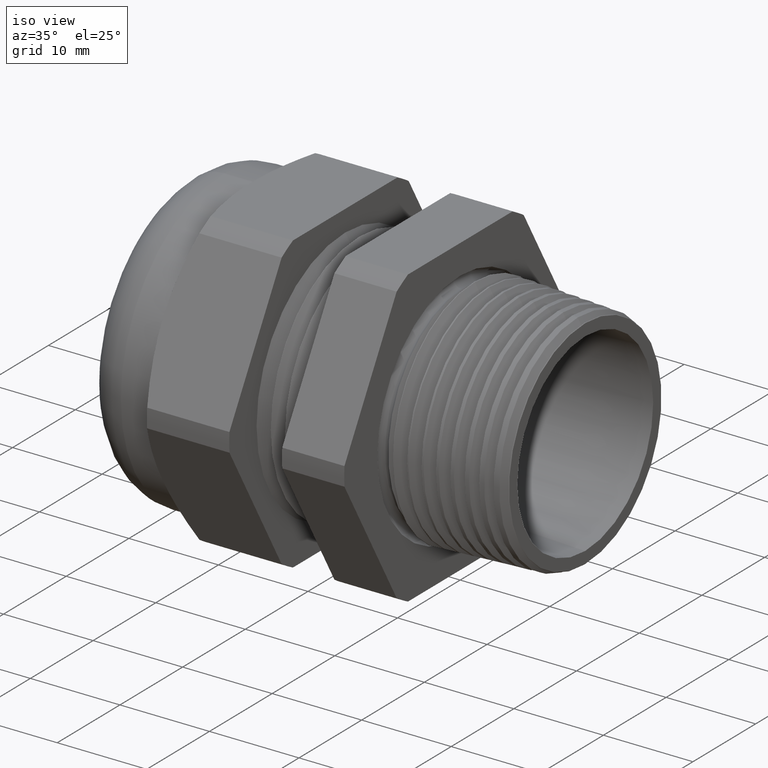
[diagram: clean part render]
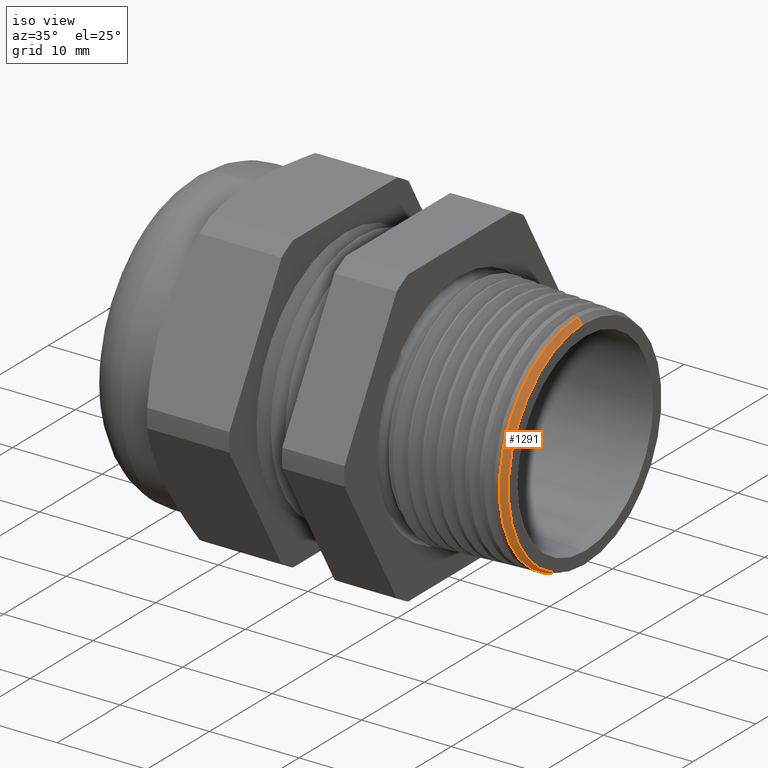
[diagram: same view with one face highlighted and labeled with its STEP entity id]
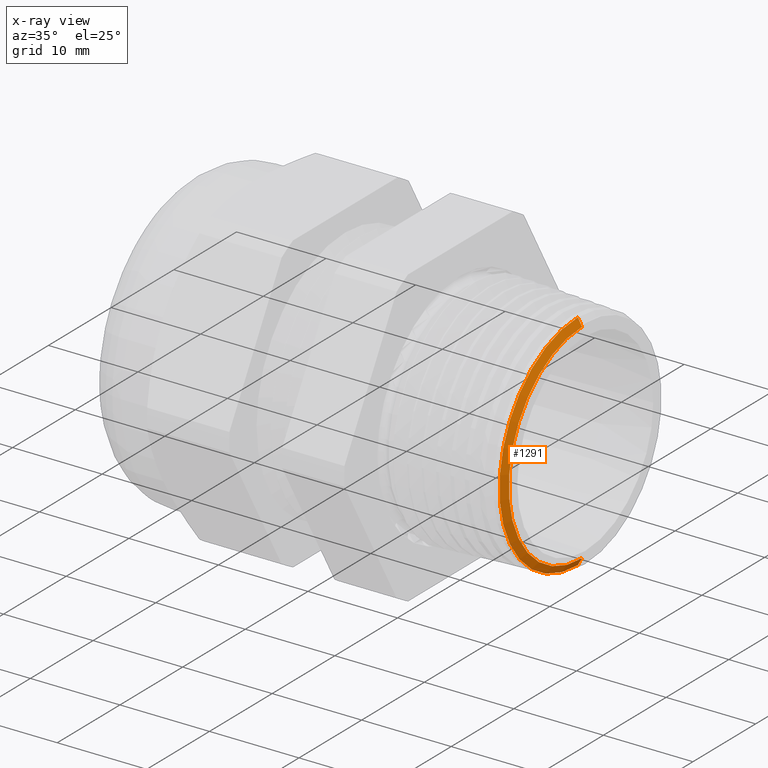
[diagram: x-ray of the same camera — body ghosted, the highlighted face saturated]
A machine part, iso view. The second image highlights one B-rep face of the part: STEP entity #1291.
The next image is the same camera in x-ray: the body ghosted, the highlighted face saturated — about 0% of this face is hidden behind the body in this view.
In plain terms, the highlighted conical surface has half-angle 60 deg.
Its self-contained STEP definition (entity closure, byte-faithful):
#115 = VERTEX_POINT ( 'NONE', #1523 ) ;
#143 = VERTEX_POINT ( 'NONE', #1593 ) ;
#144 = VERTEX_POINT ( 'NONE', #1592 ) ;
#157 = EDGE_CURVE ( 'NONE', #144, #115, #1635, .T. ) ;
#263 = EDGE_CURVE ( 'NONE', #143, #275, #1801, .T. ) ;
#275 = VERTEX_POINT ( 'NONE', #1839 ) ;
#674 = EDGE_CURVE ( 'NONE', #275, #115, #2590, .T. ) ;
#1291 = ADVANCED_FACE ( 'NONE', ( #3629 ), #3628, .T. ) ;
#1292 = EDGE_LOOP ( 'NONE', ( #1293, #1294, #1296, #1297 ) ) ;
#1293 = ORIENTED_EDGE ( 'NONE', *, *, #157, .F. ) ;
#1294 = ORIENTED_EDGE ( 'NONE', *, *, #1295, .T. ) ;
#1295 = EDGE_CURVE ( 'NONE', #144, #143, #3621, .T. ) ;
#1296 = ORIENTED_EDGE ( 'NONE', *, *, #263, .T. ) ;
#1297 = ORIENTED_EDGE ( 'NONE', *, *, #674, .T. ) ;
#1523 = CARTESIAN_POINT ( 'NONE',  ( 0.5170331955234261900, 6.037101614696442200E-017, -0.4924258431684461200 ) ) ;
#1592 = CARTESIAN_POINT ( 'NONE',  ( 0.5358319270764285700, 5.831102634491228500E-017, -0.4598654850007972700 ) ) ;
#1593 = CARTESIAN_POINT ( 'NONE',  ( 0.5358319270764285700, 0.0000000000000000000, 0.4598654850007972700 ) ) ;
#1632 = DIRECTION ( 'NONE',  ( -0.4999999999999948400, 1.060575238724910500E-016, -0.8660254037844417100 ) ) ;
#1633 = VECTOR ( 'NONE', #1632, 39.37007874015748100 ) ;
#1634 = CARTESIAN_POINT ( 'NONE',  ( 0.5039999999999998900, 6.306931015608869800E-017, -0.5150000000000000100 ) ) ;
#1635 = LINE ( 'NONE', #1634, #1633 ) ;
#1798 = DIRECTION ( 'NONE',  ( -0.4999999999999948400, 0.0000000000000000000, 0.8660254037844417100 ) ) ;
#1799 = VECTOR ( 'NONE', #1798, 39.37007874015748100 ) ;
#1800 = CARTESIAN_POINT ( 'NONE',  ( 0.5039999999999998900, 0.0000000000000000000, 0.5150000000000000100 ) ) ;
#1801 = LINE ( 'NONE', #1800, #1799 ) ;
#1839 = CARTESIAN_POINT ( 'NONE',  ( 0.5170331955234261900, 0.0000000000000000000, 0.4924258431684461200 ) ) ;
#2588 = DIRECTION ( 'NONE',  ( 1.000000000000000000, 0.0000000000000000000, 0.0000000000000000000 ) ) ;
#2589 = AXIS2_PLACEMENT_3D ( 'NONE', #2595, #2588, #2648 ) ;
#2590 = CIRCLE ( 'NONE', #2589, 0.4924258431684461200 ) ;
#2595 = CARTESIAN_POINT ( 'NONE',  ( 0.5170331955234261900, 0.0000000000000000000, 0.0000000000000000000 ) ) ;
#2648 = DIRECTION ( 'NONE',  ( 0.0000000000000000000, 0.0000000000000000000, 1.000000000000000000 ) ) ;
#3618 = DIRECTION ( 'NONE',  ( 0.0000000000000000000, 0.0000000000000000000, 1.000000000000000000 ) ) ;
#3619 = DIRECTION ( 'NONE',  ( -1.000000000000000000, 0.0000000000000000000, 0.0000000000000000000 ) ) ;
#3620 = AXIS2_PLACEMENT_3D ( 'NONE', #3627, #3619, #3618 ) ;
#3621 = CIRCLE ( 'NONE', #3620, 0.4598654850007972700 ) ;
#3623 = DIRECTION ( 'NONE',  ( 0.0000000000000000000, 0.0000000000000000000, 1.000000000000000000 ) ) ;
#3624 = DIRECTION ( 'NONE',  ( -1.000000000000000000, 0.0000000000000000000, 0.0000000000000000000 ) ) ;
#3625 = CARTESIAN_POINT ( 'NONE',  ( 0.5039999999999998900, 0.0000000000000000000, 0.0000000000000000000 ) ) ;
#3626 = AXIS2_PLACEMENT_3D ( 'NONE', #3625, #3624, #3623 ) ;
#3627 = CARTESIAN_POINT ( 'NONE',  ( 0.5358319270764285700, 0.0000000000000000000, 0.0000000000000000000 ) ) ;
#3628 = CONICAL_SURFACE ( 'NONE', #3626, 0.5150000000000000100, 1.047197551196603600 ) ;
#3629 = FACE_OUTER_BOUND ( 'NONE', #1292, .T. ) ;